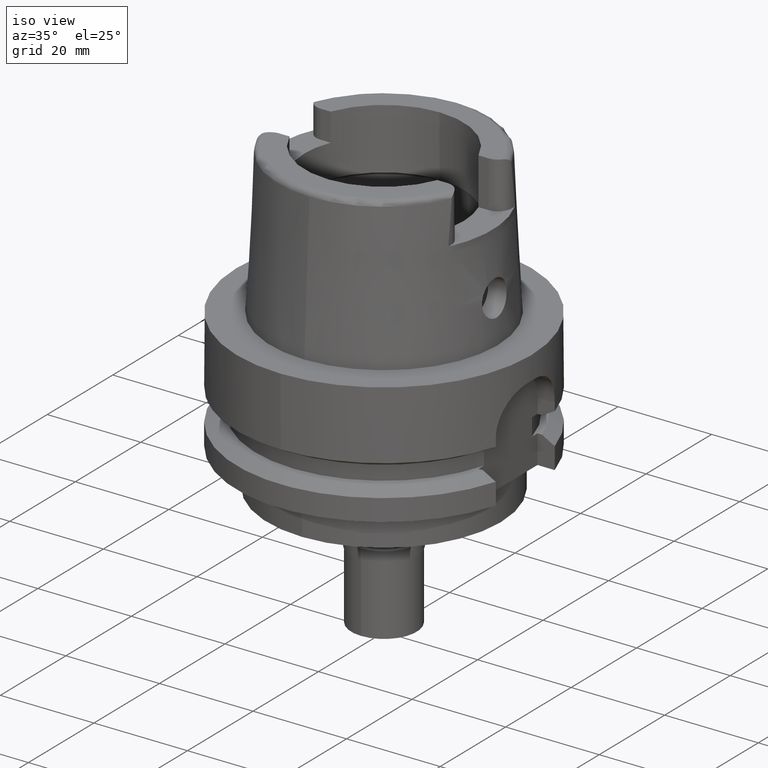
[diagram: clean part render]
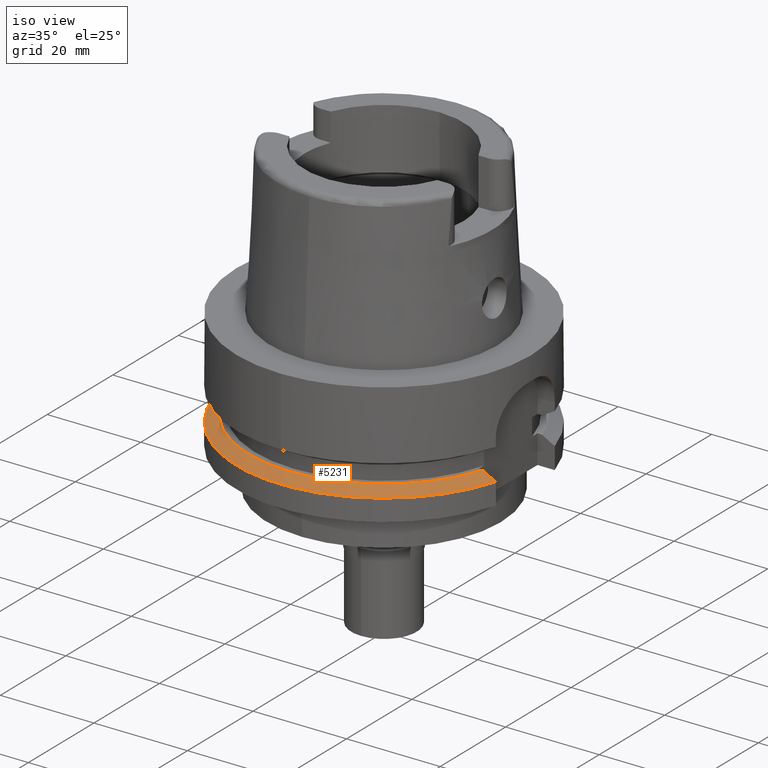
[diagram: same view with one face highlighted and labeled with its STEP entity id]
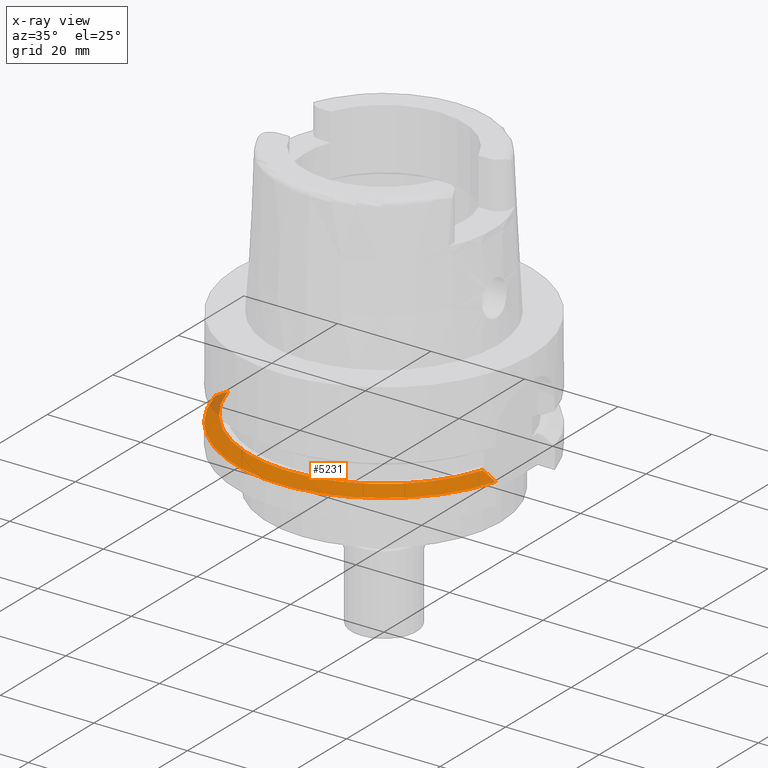
[diagram: x-ray of the same camera — body ghosted, the highlighted face saturated]
A machine part, iso view. The second image highlights one B-rep face of the part: STEP entity #5231.
The next image is the same camera in x-ray: the body ghosted, the highlighted face saturated — about 4% of this face is hidden behind the body in this view.
In plain terms, the highlighted conical surface has half-angle 60 deg.
Its self-contained STEP definition (entity closure, byte-faithful):
#31 = AXIS2_PLACEMENT_3D ( 'NONE', #4219, #1982, #2946 ) ;
#106 = CIRCLE ( 'NONE', #1282, 31.49999999999999645 ) ;
#123 = CARTESIAN_POINT ( 'NONE',  ( -30.46719550073999727, -7.999999894961999480, -21.37749812124000215 ) ) ;
#272 = CARTESIAN_POINT ( 'NONE',  ( -28.65165998135999814, -8.000000220318000288, -20.36554601923999996 ) ) ;
#540 = DIRECTION ( 'NONE',  ( 0.0000000000000000000, 0.0000000000000000000, -1.000000000000000000 ) ) ;
#585 = CONICAL_SURFACE ( 'NONE', #31, 30.19879763209999979, 1.047197551196400456 ) ;
#752 = CARTESIAN_POINT ( 'NONE',  ( -30.16036204344000282, -7.999999894961999480, -21.20615604997999881 ) ) ;
#799 = B_SPLINE_CURVE_WITH_KNOTS ( 'NONE', 3,
 ( #5311, #5252, #3990, #3093, #1347, #3150 ),
 .UNSPECIFIED., .F., .F.,
 ( 4, 1, 1, 4 ),
 ( 0.0000000000000000000, 0.3333333333333000081, 0.6666666666667000474, 1.000000000000000000 ),
 .UNSPECIFIED. ) ;
#1137 = VERTEX_POINT ( 'NONE', #2064 ) ;
#1139 = EDGE_CURVE ( 'NONE', #4327, #4465, #3767, .T. ) ;
#1282 = AXIS2_PLACEMENT_3D ( 'NONE', #3494, #4398, #1327 ) ;
#1327 = DIRECTION ( 'NONE',  ( 0.9583148474999051425, -0.2857142857143015191, 0.0000000000000000000 ) ) ;
#1347 = CARTESIAN_POINT ( 'NONE',  ( 29.87707094718999912, -9.000000692000000413, -21.20607173096000153 ) ) ;
#1502 = DIRECTION ( 'NONE',  ( 0.0000000000000000000, -1.000000000000000000, 0.0000000000000000000 ) ) ;
#1514 = VERTEX_POINT ( 'NONE', #3766 ) ;
#1676 = ORIENTED_EDGE ( 'NONE', *, *, #4926, .T. ) ;
#1982 = DIRECTION ( 'NONE',  ( 0.0000000000000000000, 0.0000000000000000000, -1.000000000000000000 ) ) ;
#2011 = EDGE_CURVE ( 'NONE', #1514, #4327, #106, .T. ) ;
#2034 = FACE_OUTER_BOUND ( 'NONE', #3720, .T. ) ;
#2064 = CARTESIAN_POINT ( 'NONE',  ( 27.46035060384999937, -9.000000205979000967, -19.87500000000000000 ) ) ;
#2600 = EDGE_CURVE ( 'NONE', #1137, #1514, #799, .T. ) ;
#2893 = CARTESIAN_POINT ( 'NONE',  ( -29.55132669524999756, -7.999999982068000115, -20.86639286682000005 ) ) ;
#2946 = DIRECTION ( 'NONE',  ( 0.0000000000000000000, -1.000000000000000000, 0.0000000000000000000 ) ) ;
#3093 = CARTESIAN_POINT ( 'NONE',  ( 29.26199291136000014, -8.999999704529999534, -20.86618110809000015 ) ) ;
#3150 = CARTESIAN_POINT ( 'NONE',  ( 30.18691769625000276, -9.000000000000000000, -21.37749907476000288 ) ) ;
#3359 = CARTESIAN_POINT ( 'NONE',  ( -27.76816544269999909, -8.000000000000000000, -19.87500000000000000 ) ) ;
#3424 = ORIENTED_EDGE ( 'NONE', *, *, #1139, .F. ) ;
#3494 = CARTESIAN_POINT ( 'NONE',  ( 0.0000000000000000000, 0.0000000000000000000, -21.37749907476000288 ) ) ;
#3673 = CIRCLE ( 'NONE', #5278, 28.89759526419000224 ) ;
#3720 = EDGE_LOOP ( 'NONE', ( #3424, #5313, #4102, #1676 ) ) ;
#3766 = CARTESIAN_POINT ( 'NONE',  ( 30.18691769625000276, -9.000000000000000000, -21.37749907476000288 ) ) ;
#3767 = B_SPLINE_CURVE_WITH_KNOTS ( 'NONE', 3,
 ( #4614, #752, #2893, #272, #4223, #4538 ),
 .UNSPECIFIED., .F., .F.,
 ( 4, 1, 1, 4 ),
 ( 0.0000000000000000000, 0.3333333333333000081, 0.6666666666667000474, 1.000000000000000000 ),
 .UNSPECIFIED. ) ;
#3990 = CARTESIAN_POINT ( 'NONE',  ( 28.35314715152000176, -8.999999996142999947, -20.36532778769000274 ) ) ;
#4102 = ORIENTED_EDGE ( 'NONE', *, *, #2600, .F. ) ;
#4219 = CARTESIAN_POINT ( 'NONE',  ( 0.0000000000000000000, 0.0000000000000000000, -20.62624953738000144 ) ) ;
#4223 = CARTESIAN_POINT ( 'NONE',  ( -28.06112407364999939, -7.999999497878999222, -20.03752483902000137 ) ) ;
#4327 = VERTEX_POINT ( 'NONE', #123 ) ;
#4398 = DIRECTION ( 'NONE',  ( 0.0000000000000000000, 0.0000000000000000000, -1.000000000000000000 ) ) ;
#4465 = VERTEX_POINT ( 'NONE', #3359 ) ;
#4538 = CARTESIAN_POINT ( 'NONE',  ( -27.76816544269999909, -8.000000000000000000, -19.87500000000000000 ) ) ;
#4614 = CARTESIAN_POINT ( 'NONE',  ( -30.46719550073999727, -7.999999894961999480, -21.37749812124000215 ) ) ;
#4926 = EDGE_CURVE ( 'NONE', #1137, #4465, #3673, .T. ) ;
#5231 = ADVANCED_FACE ( 'NONE', ( #2034 ), #585, .T. ) ;
#5252 = CARTESIAN_POINT ( 'NONE',  ( 27.75642598849000109, -9.000000205979000967, -20.03743742280999740 ) ) ;
#5278 = AXIS2_PLACEMENT_3D ( 'NONE', #5395, #540, #1502 ) ;
#5311 = CARTESIAN_POINT ( 'NONE',  ( 27.46035060384999937, -9.000000205979000967, -19.87500000000000000 ) ) ;
#5313 = ORIENTED_EDGE ( 'NONE', *, *, #2011, .F. ) ;
#5395 = CARTESIAN_POINT ( 'NONE',  ( 0.0000000000000000000, 0.0000000000000000000, -19.87500000000000000 ) ) ;